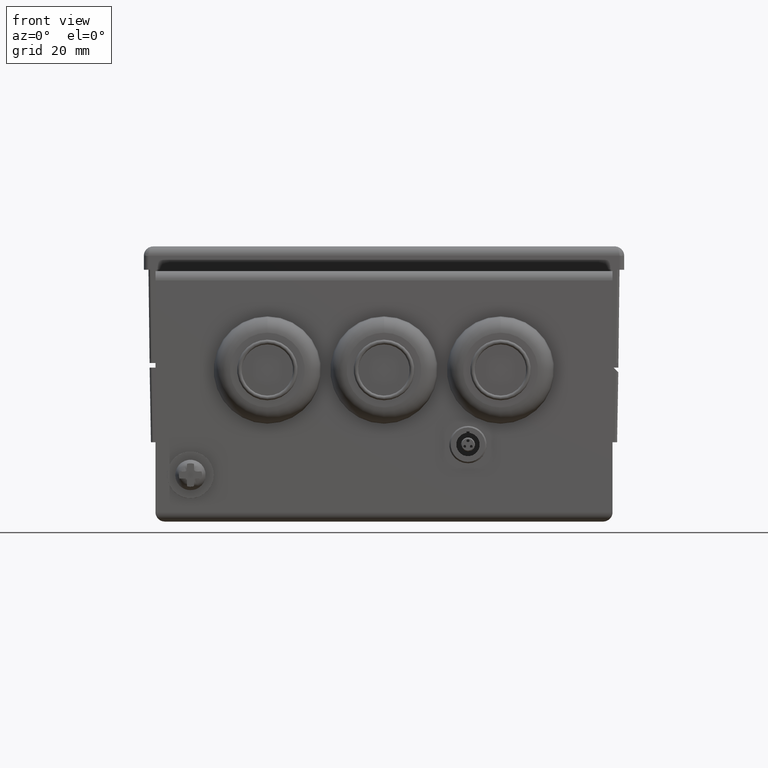
[diagram: clean part render]
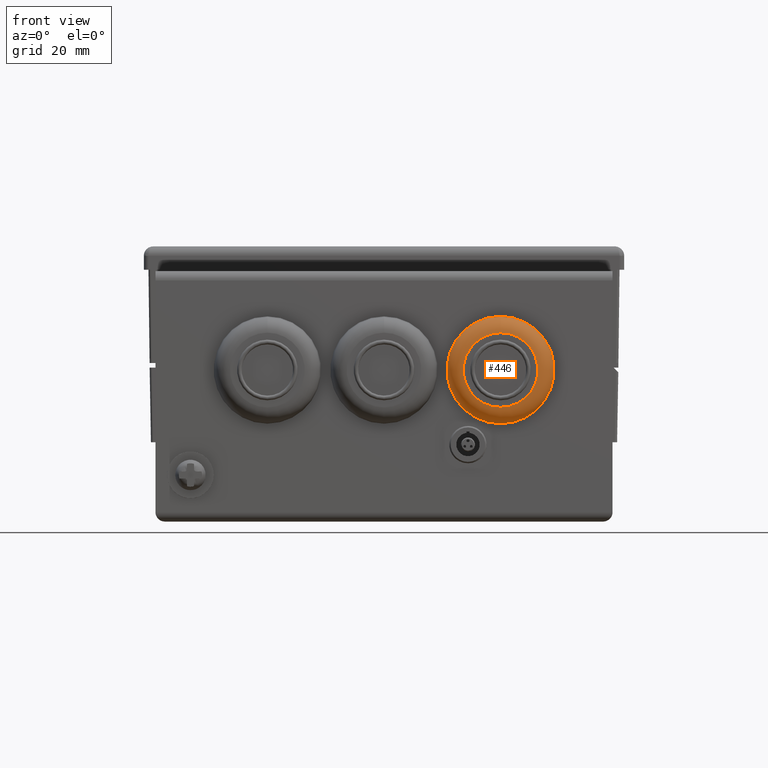
[diagram: same view with one face highlighted and labeled with its STEP entity id]
A machine part, front view. The second image highlights one B-rep face of the part: STEP entity #446.
In plain terms, the highlighted toroidal blend (fillet) surface has major radius 8 mm and minor (blend) radius 3.5 mm.
Its self-contained STEP definition (entity closure, byte-faithful):
#446 = ADVANCED_FACE( '', ( #949, #950 ), #951, .T. );
#949 = FACE_OUTER_BOUND( '', #2041, .T. );
#950 = FACE_OUTER_BOUND( '', #2042, .T. );
#951 = TOROIDAL_SURFACE( '', #2043, 7.99999999999696, 3.50000000000000 );
#2041 = EDGE_LOOP( '', ( #3139 ) );
#2042 = EDGE_LOOP( '', ( #3140 ) );
#2043 = AXIS2_PLACEMENT_3D( '', #3141, #3142, #3143 );
#3139 = ORIENTED_EDGE( '', *, *, #3615, .T. );
#3140 = ORIENTED_EDGE( '', *, *, #3704, .T. );
#3141 = CARTESIAN_POINT( '', ( 25.0000000000000, -58.9999999999887, -26.5000000000000 ) );
#3142 = DIRECTION( '', ( -1.83690953073289E-016, 1.00000000000000, 5.54450665274108E-013 ) );
#3143 = DIRECTION( '', ( 0.000000000000000, -5.54450665274109E-013, 1.00000000000000 ) );
#3615 = EDGE_CURVE( '', #4244, #4244, #4245, .T. );
#3704 = EDGE_CURVE( '', #4349, #4349, #4350, .T. );
#4244 = VERTEX_POINT( '', #5098 );
#4245 = CIRCLE( '', #5099, 7.99999999999488 );
#4349 = VERTEX_POINT( '', #5228 );
#4350 = CIRCLE( '', #5229, 11.4999999999970 );
#5098 = CARTESIAN_POINT( '', ( 25.0000000000000, -62.4999999999931, -18.5000000000071 ) );
#5099 = AXIS2_PLACEMENT_3D( '', #5694, #5695, #5696 );
#5228 = CARTESIAN_POINT( '', ( 25.0000000000000, -59.0000000000000, -37.9999999999970 ) );
#5229 = AXIS2_PLACEMENT_3D( '', #5779, #5780, #5781 );
#5694 = CARTESIAN_POINT( '', ( 25.0000000000000, -62.4999999999887, -26.5000000000020 ) );
#5695 = DIRECTION( '', ( -1.83690953073289E-016, 1.00000000000000, 5.54450665274109E-013 ) );
#5696 = DIRECTION( '', ( 0.000000000000000, -5.54450665274108E-013, 1.00000000000000 ) );
#5779 = CARTESIAN_POINT( '', ( 25.0000000000000, -59.0000000000000, -26.5000000000000 ) );
#5780 = DIRECTION( '', ( 0.000000000000000, -1.00000000000000, 0.000000000000000 ) );
#5781 = DIRECTION( '', ( 0.000000000000000, 0.000000000000000, -1.00000000000000 ) );